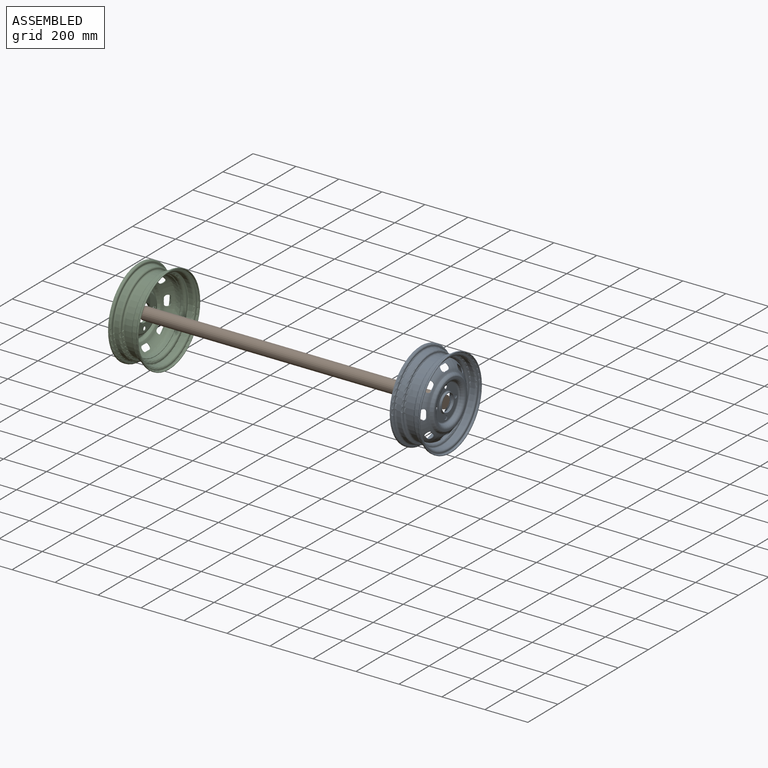
[diagram: assembled view]
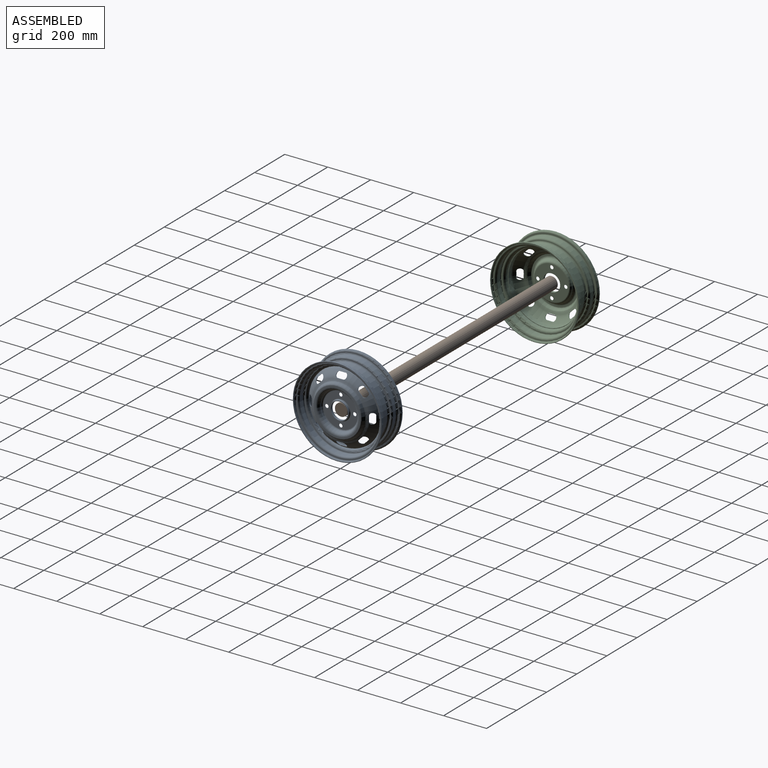
[diagram: assembled view, second angle]
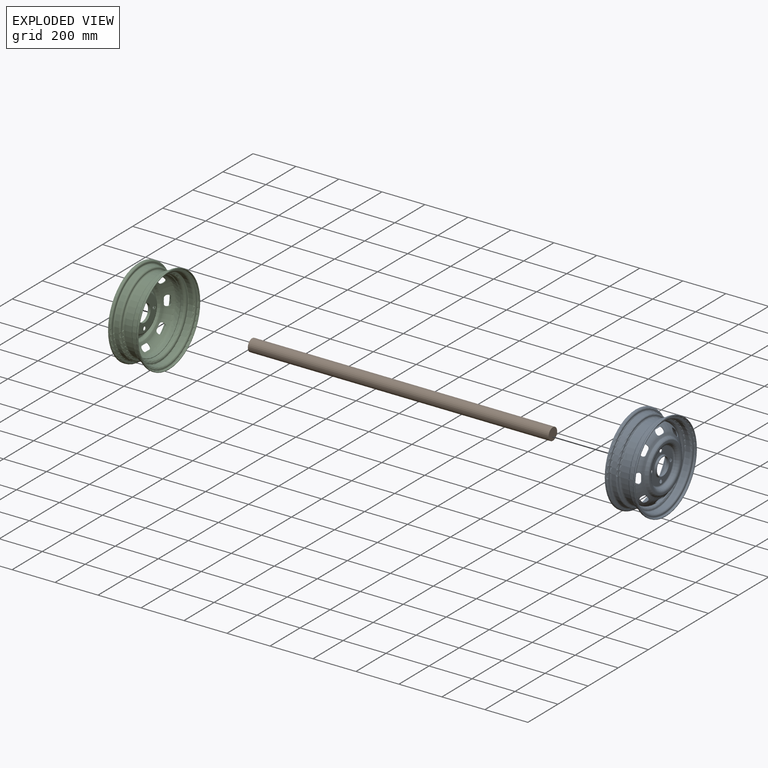
[diagram: exploded view]
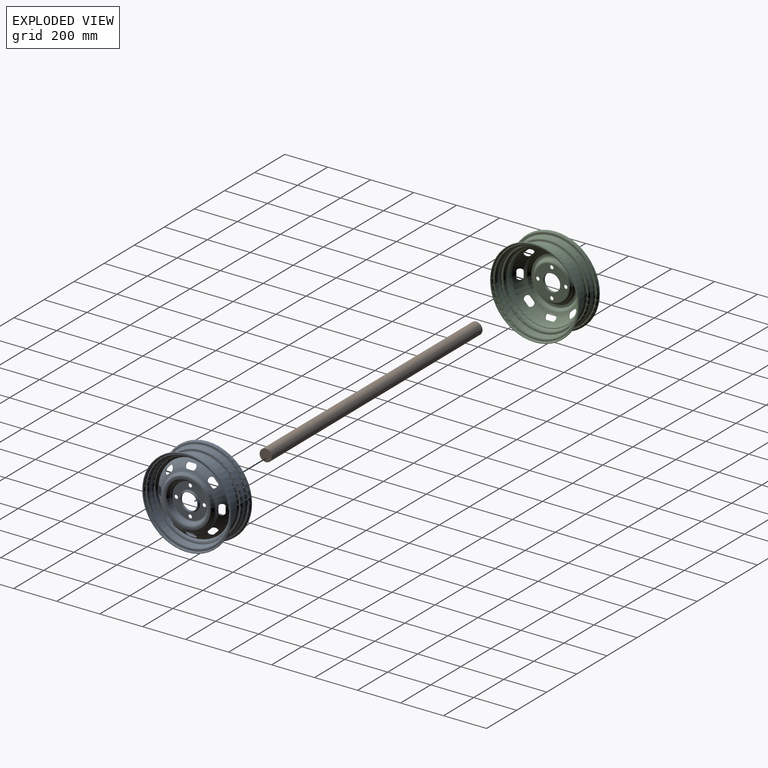
[diagram: exploded view, second angle]
ASSEMBLY  parts=3 mates=2
PART A: 96 faces, bbox 140.4x447.2x447.2 mm
  f0: cylinder r=168.51mm len=337.03mm, axis (1,0,0), area 17872.6mm2, adj f1,f95
  f1: torus R=179.84mm, axis (1,0,0), area 19299.4mm2, adj f0,f2
  f2: plane 360.56x360.56mm, normal (-1,0,0), area 497.8mm2, adj f1,f3
  f3: torus R=180.28mm, axis (1,0,0), area 10219.7mm2, adj f2,f4
  f4: cylinder r=185.91mm len=371.83mm, axis (1,0,0), area 21001mm2, adj f3,f5
  f5: torus R=194.05mm, axis (1,0,0), area 15173.5mm2, adj f4,f6
  f6: plane 396.59x396.59mm, normal (-1,0,0), area 5229.4mm2, adj f5,f7
  f7: torus R=198.29mm, axis (1,0,0), area 10104.2mm2, adj f6,f8
  f8: cylinder r=203.38mm len=406.75mm, axis (1,0,0), area 5903.6mm2, adj f7,f9
  f9: plane 412.75x412.75mm, normal (-1,0,0), area 3861.8mm2, adj f8,f10
  f10: cylinder r=206.38mm len=412.75mm, axis (1,0,0), area 6587.2mm2, adj f9,f11
  f11: torus R=198.75mm, axis (1,0,0), area 15312.5mm2, adj f10,f12
  f12: plane 397.51x397.51mm, normal (1,0,0), area 5876.2mm2, adj f11,f13
  f13: torus R=193.99mm, axis (1,0,0), area 9564.2mm2, adj f12,f14
  f14: cylinder r=188.91mm len=377.83mm, axis (1,0,0), area 21994.7mm2, adj f13,f15
  f15: torus R=180.77mm, axis (1,0,0), area 14939.2mm2, adj f14,f16
  f16: plane 361.55x361.55mm, normal (1,0,0), area 1820.9mm2, adj f15,f17
  f17: torus R=179.16mm, axis (1,0,0), area 13157.4mm2, adj f16,f18
  f18: cylinder r=171.51mm len=343.03mm, axis (1,0,0), area 37947.5mm2, adj f17,f19
  f19: torus R=179.45mm, axis (1,0,0), area 13663.4mm2, adj f18,f20
  f20: plane 364.9x364.9mm, normal (-1,0,0), area 3407.8mm2, adj f19,f21
  f21: torus R=182.45mm, axis (1,0,0), area 11901.4mm2, adj f20,f22
  f22: cylinder r=188.91mm len=377.83mm, axis (1,0,0), area 21694.6mm2, adj f21,f23
  f23: torus R=195.92mm, axis (1,0,0), area 13244.7mm2, adj f22,f24
  f24: plane 397.54x397.54mm, normal (-1,0,0), area 3529mm2, adj f23,f25
  f25: torus R=198.77mm, axis (1,0,0), area 15313.4mm2, adj f24,f26
  f26: cylinder r=206.39mm len=412.78mm, axis (1,0,0), area 6587.6mm2, adj f25,f27
  f27: plane 412.78x412.78mm, normal (1,0,0), area 3273.5mm2, adj f26,f28
  f28: cylinder r=203.85mm len=407.7mm, axis (1,0,0), area 6506.5mm2, adj f27,f29
  f29: torus R=198.77mm, axis (1,0,0), area 10127.9mm2, adj f28,f30
  f30: plane 397.54x397.54mm, normal (1,0,0), area 2905mm2, adj f29,f31
  f31: torus R=196.43mm, axis (1,0,0), area 18858.7mm2, adj f30,f32
  f32: cylinder r=186.37mm len=372.75mm, axis (1,0,0), area 21792.6mm2, adj f31,f33
  f33: torus R=183.29mm, axis (1,0,0), area 5639.8mm2, adj f32,f34
  f34: plane 366.58x366.58mm, normal (1,0,0), area 4016.9mm2, adj f33,f35
  f35: torus R=179.77mm, axis (1,0,0), area 19168.9mm2, adj f34,f36
  f36: cylinder r=168.51mm len=337.03mm, axis (1,0,0), area 10773.4mm2, adj f35,f37
  f37: plane 337.03x337.03mm, normal (1,0,0), area 2669.1mm2, adj f36,f38
  f38: cylinder r=165.97mm len=331.95mm, axis (-1,0,0), area 6992.2mm2, adj f37,f39
  f39: revolved ~331.95x331.95mm, area 62451.7mm2, adj f38,f40,f42,f43,f44,f45,f47,f48
  f40: cylinder r=11.43mm len=22.11mm, axis (-1,0,0), area 119.8mm2, adj f39,f41,f42,f44
  f41: revolved ~50.27x50.27mm, area 1280.8mm2, adj f40,f42,f43,f44
  f42: plane 17.96x17.96mm, normal (0,-0.71,0.71), area 71.4mm2, adj f39,f40,f41,f43
  f43: cylinder r=11.43mm len=22.11mm, axis (-1,0,0), area 119.8mm2, adj f39,f41,f42,f44
  f44: plane 17.96x17.96mm, normal (0,0.71,-0.71), area 94.5mm2, adj f39,f40,f41,f43
  f45: cylinder r=11.43mm len=22.86mm, axis (-1,0,0), area 119.8mm2, adj f39,f46,f47,f49
  f46: revolved ~51.9x25.27mm, area 1280.8mm2, adj f45,f47,f48,f49
  f47: plane 25.4x3.1mm, normal (0,-1,0), area 71.4mm2, adj f39,f45,f46,f48
  f48: cylinder r=11.43mm len=22.86mm, axis (-1,0,0), area 119.8mm2, adj f39,f46,f47,f49
  f49: plane 25.4x4.28mm, normal (0,1,0), area 94.5mm2, adj f39,f45,f46,f48
  f50: cylinder r=11.43mm len=22.11mm, axis (-1,0,0), area 119.8mm2, adj f39,f51,f52,f54
  f51: revolved ~50.27x50.27mm, area 1280.8mm2, adj f50,f52,f53,f54
  f52: plane 17.96x17.96mm, normal (0,-0.71,-0.71), area 71.4mm2, adj f39,f50,f51,f53
  f53: cylinder r=11.43mm len=22.11mm, axis (-1,0,0), area 119.8mm2, adj f39,f51,f52,f54
  f54: plane 17.96x17.96mm, normal (0,0.71,0.71), area 94.5mm2, adj f39,f50,f51,f53
  f55: cylinder r=11.43mm len=22.86mm, axis (-1,0,0), area 119.8mm2, adj f39,f56,f57,f59
  f56: revolved ~51.9x25.27mm, area 1280.8mm2, adj f55,f57,f58,f59
  f57: plane 25.4x3.1mm, normal (0,0,-1), area 71.4mm2, adj f39,f55,f56,f58
  f58: cylinder r=11.43mm len=22.86mm, axis (-1,0,0), area 119.8mm2, adj f39,f56,f57,f59
  f59: plane 25.4x4.28mm, normal (0,0,1), area 94.5mm2, adj f39,f55,f56,f58
  f60: cylinder r=11.43mm len=22.11mm, axis (-1,0,0), area 119.8mm2, adj f39,f61,f62,f64
  f61: revolved ~50.27x50.27mm, area 1280.8mm2, adj f60,f62,f63,f64
  f62: plane 17.96x17.96mm, normal (0,0.71,-0.71), area 71.4mm2, adj f39,f60,f61,f63
  f63: cylinder r=11.43mm len=22.11mm, axis (-1,0,0), area 119.8mm2, adj f39,f61,f62,f64
  f64: plane 17.96x17.96mm, normal (0,-0.71,0.71), area 94.5mm2, adj f39,f60,f61,f63
  f65: cylinder r=11.43mm len=22.86mm, axis (-1,0,0), area 119.8mm2, adj f39,f66,f67,f69
  f66: revolved ~51.9x25.27mm, area 1280.8mm2, adj f65,f67,f68,f69
  f67: plane 25.4x3.1mm, normal (0,1,0), area 71.4mm2, adj f39,f65,f66,f68
  f68: cylinder r=11.43mm len=22.86mm, axis (-1,0,0), area 119.8mm2, adj f39,f66,f67,f69
  f69: plane 25.4x4.28mm, normal (0,-1,0), area 94.5mm2, adj f39,f65,f66,f68
  f70: cylinder r=11.43mm len=22.11mm, axis (-1,0,0), area 119.8mm2, adj f39,f71,f72,f74
  f71: revolved ~50.27x50.27mm, area 1280.8mm2, adj f70,f72,f73,f74
  f72: plane 17.96x17.96mm, normal (0,0.71,0.71), area 71.4mm2, adj f39,f70,f71,f73
  f73: cylinder r=11.43mm len=22.11mm, axis (-1,0,0), area 119.8mm2, adj f39,f71,f72,f74
  f74: plane 17.96x17.96mm, normal (0,-0.71,-0.71), area 94.5mm2, adj f39,f70,f71,f73
  f75: plane 25.79x4.67mm, normal (0,0,-1), area 94.5mm2, adj f39,f76,f94,f95
  f76: cylinder r=11.43mm len=22.86mm, axis (-1,0,0), area 119.8mm2, adj f39,f75,f93,f95
  f77: revolved ~235.78x235.78mm, area 26162.4mm2, adj f39,f78
  f78: cylinder r=89.37mm len=178.74mm, axis (-1,0,0), area 966mm2, adj f77,f79
  f79: torus R=79.31mm, axis (-1,0,0), area 8506.4mm2, adj f78,f80
  f80: plane 158.62x158.62mm, normal (1,0,0), area 13906.2mm2, adj f79,f81,f89,f90,f91,f92
  f81: cylinder r=39.75mm len=79.5mm, axis (-1,0,0), area 2946.5mm2, adj f80,f82
  f82: plane 85.5x85.5mm, normal (-1,0,0), area 776.8mm2, adj f81,f83
  f83: cylinder r=42.75mm len=85.5mm, axis (-1,0,0), area 1339mm2, adj f82,f84
  f84: torus R=47.02mm, axis (-1,0,0), area 1867.8mm2, adj f83,f85
  f85: plane 159.56x159.56mm, normal (-1,0,0), area 12157.4mm2, adj f84,f86,f89,f90,f91,f92
  f86: torus R=79.78mm, axis (-1,0,0), area 5863mm2, adj f85,f87
  f87: cylinder r=86.83mm len=173.66mm, axis (-1,0,0), area 1433.6mm2, adj f86,f88
  f88: revolved ~240.47x240.47mm, area 30395.3mm2, adj f87
  f89: cylinder r=8.42mm len=16.85mm, axis (-1,0,0), area 134.4mm2, adj f80,f85
  f90: cylinder r=8.42mm len=16.85mm, axis (-1,0,0), area 134.4mm2, adj f80,f85
  f91: cylinder r=8.42mm len=16.85mm, axis (-1,0,0), area 134.4mm2, adj f80,f85
  f92: cylinder r=8.42mm len=16.85mm, axis (-1,0,0), area 134.4mm2, adj f80,f85
  f93: plane 25.74x3.44mm, normal (0,0,1), area 71.4mm2, adj f39,f76,f94,f95
  f94: cylinder r=11.43mm len=22.86mm, axis (-1,0,0), area 119.8mm2, adj f39,f75,f93,f95
  f95: revolved ~336.44x336.39mm, area -36449.2mm2, adj f0,f75,f76,f93,f94
PART B: 3 faces, bbox 1399.5x57.2x57.2 mm
  f0: cylinder r=28.58mm len=1399.54mm, axis (-1,0,0), area 251352.8mm2, adj f1,f2
  f1: plane 57.17x57.17mm, normal (1,0,0), area 2566.8mm2, adj f0
  f2: plane 57.17x57.17mm, normal (-1,0,0), area 2566.8mm2, adj f0
PART C: same geometry as A
PLACE A rot(axis=(0,1,0),180deg) t=(1194.34,-18.94,-90)mm
PLACE B t=(-230.6,-18.94,-90)mm
PLACE C t=(-256,-18.94,-90)mm
MATE fastened A.f0 <-> B.f0  axis (-1,0,0) through (1168.94,-18.94,-90)mm
MATE fastened C.f0 <-> B.f0  axis (1,0,0) through (-230.6,-18.94,-90)mm
